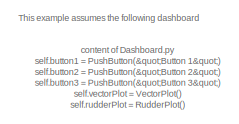
[diagram: root canvas - part 1/3, top left region]
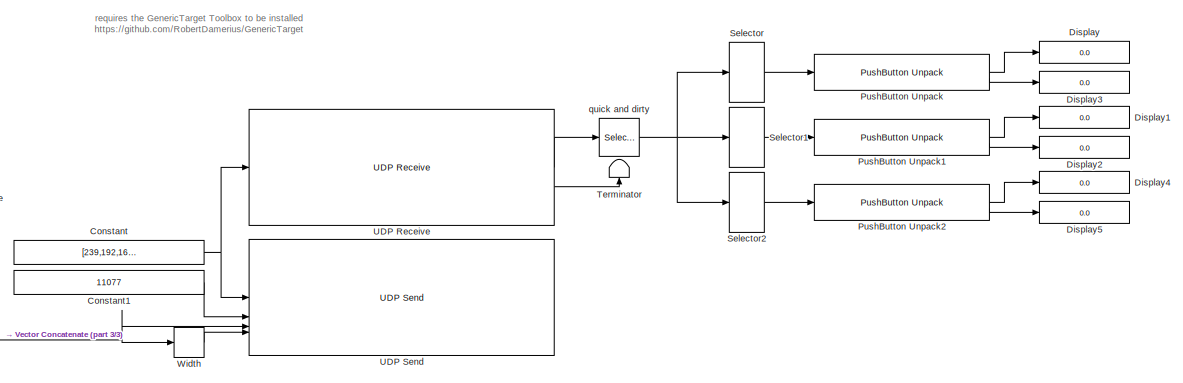
[diagram: root canvas - part 2/3, middle right region]
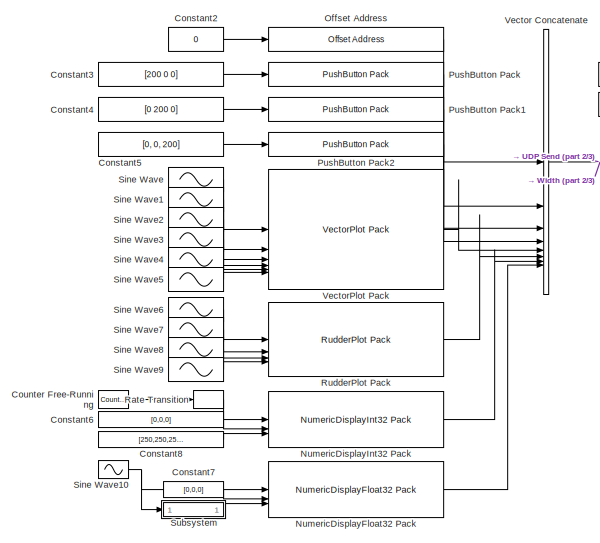
[diagram: root canvas - part 3/3, bottom left region]
MODEL slx_2256e0a58323
KIND model
CONFIG AbsTol = auto
CONFIG EnableMultiTasking = on
CONFIG FixedStep = 0.02
CONFIG MaxStep = auto
CONFIG MinStep = auto
CONFIG RelTol = 1e-3
CONFIG SampleTimeConstraint = Unconstrained
CONFIG SolverName = FixedStepAuto
CONFIG StartTime = 0.0
CONFIG StopTime = inf
BLOCK [Constant] Constant
  OutDataTypeStr = uint8
  Value = [239,192,168,11]
BLOCK [Constant] Constant1
  OutDataTypeStr = uint16
  Value = 11077
BLOCK [Constant] Constant2
  OutDataTypeStr = uint32
  Value = 0
BLOCK [Constant] Constant3
  OutDataTypeStr = uint8
  Value = [200 0 0]
BLOCK [Constant] Constant4
  OutDataTypeStr = uint8
  Value = [0 200 0]
BLOCK [Constant] Constant5
  OutDataTypeStr = uint8
  Value = [0, 0, 200]
BLOCK [Constant] Constant6
  OutDataTypeStr = uint8
  Value = [0,0,0]
BLOCK [Constant] Constant7
  OutDataTypeStr = uint8
  Value = [0,0,0]
BLOCK [Constant] Constant8
  OutDataTypeStr = uint8
  Value = [250,250,250]
BLOCK [Reference] Counter Free-Running  REF=simulink/Sources/Counter
Free-Running
  SourceBlock = simulink/Sources/Counter\nFree-Running
  SourceType = Counter Free-Running
BLOCK [Display] Display
  Decimation = 1
BLOCK [Display] Display1
  Decimation = 1
BLOCK [Display] Display2
  Decimation = 1
BLOCK [Display] Display3
  Decimation = 1
BLOCK [Display] Display4
  Decimation = 1
BLOCK [Display] Display5
  Decimation = 1
BLOCK [Reference] NumericDisplayFloat32 Pack  REF=pingui/NumericDisplayFloat32 Pack  (lib defined in slx_4c5e8eaec947)
  SourceBlock = pingui/NumericDisplayFloat32 Pack
BLOCK [Reference] NumericDisplayInt32 Pack  REF=pingui/NumericDisplayInt32 Pack  (lib defined in slx_4c5e8eaec947)
  SourceBlock = pingui/NumericDisplayInt32 Pack
BLOCK [Reference] Offset Address  REF=pingui/Offset Address  (lib defined in slx_4c5e8eaec947)
  SourceBlock = pingui/Offset Address
BLOCK [Reference] PushButton Pack  REF=pingui/PushButton Pack  (lib defined in slx_4c5e8eaec947)
  SourceBlock = pingui/PushButton Pack
BLOCK [Reference] PushButton Pack1  REF=pingui/PushButton Pack  (lib defined in slx_4c5e8eaec947)
  SourceBlock = pingui/PushButton Pack
BLOCK [Reference] PushButton Pack2  REF=pingui/PushButton Pack  (lib defined in slx_4c5e8eaec947)
  SourceBlock = pingui/PushButton Pack
BLOCK [Reference] PushButton Unpack  REF=pingui/PushButton Unpack  (lib defined in slx_4c5e8eaec947)
  SourceBlock = pingui/PushButton Unpack
BLOCK [Reference] PushButton Unpack1  REF=pingui/PushButton Unpack  (lib defined in slx_4c5e8eaec947)
  SourceBlock = pingui/PushButton Unpack
BLOCK [Reference] PushButton Unpack2  REF=pingui/PushButton Unpack  (lib defined in slx_4c5e8eaec947)
  SourceBlock = pingui/PushButton Unpack
BLOCK [RateTransition] Rate Transition
  Deterministic = off
  OutPortSampleTime = 0.02
BLOCK [Reference] RudderPlot Pack  REF=pingui/RudderPlot Pack  (lib defined in slx_4c5e8eaec947)
  SourceBlock = pingui/RudderPlot Pack
BLOCK [Selector] Selector
  IndexOptions = Index vector (dialog)
  Indices = 1:2
  InputPortWidth = 6
  OutputSizes = 1
BLOCK [Selector] Selector1
  IndexOptions = Index vector (dialog)
  Indices = 3:4
  InputPortWidth = 6
  OutputSizes = 1
BLOCK [Selector] Selector2
  IndexOptions = Index vector (dialog)
  Indices = 5:6
  InputPortWidth = 6
  OutputSizes = 1
BLOCK [Sin] Sine Wave
  SampleTime = 0
BLOCK [Sin] Sine Wave1
  Phase = 2
  SampleTime = 0
BLOCK [Sin] Sine Wave10
  Amplitude = 10
  SampleTime = 0
BLOCK [Sin] Sine Wave2
  Phase = 1
  SampleTime = 0
BLOCK [Sin] Sine Wave3
  Phase = 0.1
  SampleTime = 0
BLOCK [Sin] Sine Wave4
  Phase = 2.1
  SampleTime = 0
BLOCK [Sin] Sine Wave5
  Phase = 1.1
  SampleTime = 0
BLOCK [Sin] Sine Wave6
  Phase = 2
  SampleTime = 0
BLOCK [Sin] Sine Wave7
  SampleTime = 0
BLOCK [Sin] Sine Wave8
  Phase = 2.1
  SampleTime = 0
BLOCK [Sin] Sine Wave9
  Phase = 0.1
  SampleTime = 0
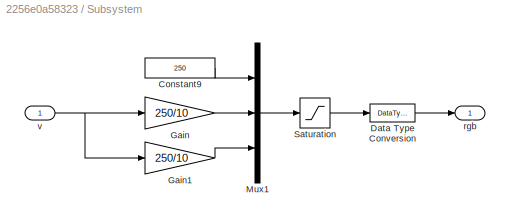
BLOCK [SubSystem] Subsystem
BLOCK [Constant] Subsystem/Constant9
  OutDataTypeStr = double
  Value = 250
BLOCK [DataTypeConversion] Subsystem/Data Type Conversion
  OutDataTypeStr = uint8
  RndMeth = Floor
  SaturateOnIntegerOverflow = off
BLOCK [Gain] Subsystem/Gain
  Gain = 250/10
BLOCK [Gain] Subsystem/Gain1
  Gain = 250/10
BLOCK [Mux] Subsystem/Mux1
  DisplayOption = bar
  Inputs = 3
BLOCK [Saturate] Subsystem/Saturation
  LowerLimit = 0
  UpperLimit = 255
BLOCK [Outport] Subsystem/rgb
BLOCK [Inport] Subsystem/v
BLOCK [Terminator] Terminator
  NameLocation = right
BLOCK [Reference] UDP Receive  REF=GenericTarget/Interface/UDP Receive
  SourceBlock = GenericTarget/Interface/UDP Receive
  SourceProductName = Generic Target
BLOCK [Reference] UDP Send  REF=GenericTarget/Interface/UDP Send
  SourceBlock = GenericTarget/Interface/UDP Send
  SourceProductName = Generic Target
BLOCK [Concatenate] Vector Concatenate
  NumInputs = 8
BLOCK [Reference] VectorPlot Pack  REF=pingui/VectorPlot Pack  (lib defined in slx_4c5e8eaec947)
  SourceBlock = pingui/VectorPlot Pack
BLOCK [Width] Width
  DataType = uint32
BLOCK [Selector] quick and dirty
  IndexOptions = Index vector (dialog)
  Indices = 1:6
  NameLocation = top
  OutputSizes = 1
ANNOTATION (root): requires the GenericTarget Toolbox to be installed https://github.com/RobertDamerius/GenericTarget
ANNOTATION (root): content of Dashboard.py self . button1 = PushButton ( "Button 1" ) self . button2 = PushButton ( "Button 2" ) self . button3 = PushButton ( "Button 3" ) self . vectorPlot = VectorPlot () self . rudderPlot = RudderPlot () self . numericDisplayInt32 = NumericDisplayInt32 () self . numericDisplayFloat32 = NumericDisplayFloat32 ( num_digits = 2 ) layout = QGridLayout () self . setLayout ( layout ) lay...<+422ch>
ANNOTATION (root): This example assumes the following dashboard
LINE Constant1:1 -> UDP Send:2
LINE Constant2:1 -> Offset Address:1
LINE Constant3:1 -> PushButton Pack:1
LINE Constant4:1 -> PushButton Pack1:1
LINE Constant5:1 -> PushButton Pack2:1
LINE Constant6:1 -> NumericDisplayInt32 Pack:2
LINE Constant7:1 -> NumericDisplayFloat32 Pack:2
LINE Constant8:1 -> NumericDisplayInt32 Pack:3
NET Constant:1 -> UDP Receive:1, UDP Send:1
LINE Counter Free-Running:1 -> Rate Transition:1
LINE NumericDisplayFloat32 Pack:1 -> Vector Concatenate:8
LINE NumericDisplayInt32 Pack:1 -> Vector Concatenate:7
LINE Offset Address:1 -> Vector Concatenate:1
LINE PushButton Pack1:1 -> Vector Concatenate:3
LINE PushButton Pack2:1 -> Vector Concatenate:4
LINE PushButton Pack:1 -> Vector Concatenate:2
LINE PushButton Unpack1:1 -> Display1:1
LINE PushButton Unpack1:2 -> Display2:1
LINE PushButton Unpack2:1 -> Display4:1
LINE PushButton Unpack2:2 -> Display5:1
LINE PushButton Unpack:1 -> Display:1
LINE PushButton Unpack:2 -> Display3:1
LINE Rate Transition:1 -> NumericDisplayInt32 Pack:1
LINE RudderPlot Pack:1 -> Vector Concatenate:6
LINE Selector1:1 -> PushButton Unpack1:1
LINE Selector2:1 -> PushButton Unpack2:1
LINE Selector:1 -> PushButton Unpack:1
NET Sine Wave10:1 -> NumericDisplayFloat32 Pack:1, Subsystem:1
LINE Sine Wave1:1 -> VectorPlot Pack:2
LINE Sine Wave2:1 -> VectorPlot Pack:3
LINE Sine Wave3:1 -> VectorPlot Pack:4
LINE Sine Wave4:1 -> VectorPlot Pack:5
LINE Sine Wave5:1 -> VectorPlot Pack:6
LINE Sine Wave6:1 -> RudderPlot Pack:1
LINE Sine Wave7:1 -> RudderPlot Pack:2
LINE Sine Wave8:1 -> RudderPlot Pack:3
LINE Sine Wave9:1 -> RudderPlot Pack:4
LINE Sine Wave:1 -> VectorPlot Pack:1
LINE Subsystem/Constant9:1 -> Subsystem/Mux1:1
LINE Subsystem/Data Type Conversion:1 -> Subsystem/rgb:1
LINE Subsystem/Gain1:1 -> Subsystem/Mux1:3
LINE Subsystem/Gain:1 -> Subsystem/Mux1:2
LINE Subsystem/Mux1:1 -> Subsystem/Saturation:1
LINE Subsystem/Saturation:1 -> Subsystem/Data Type Conversion:1
NET Subsystem/v:1 -> Subsystem/Gain1:1, Subsystem/Gain:1
LINE Subsystem:1 -> NumericDisplayFloat32 Pack:3
LINE UDP Receive:1 -> quick and dirty:1
LINE UDP Receive:2 -> Terminator:1
NET Vector Concatenate:1 -> UDP Send:3, Width:1
LINE VectorPlot Pack:1 -> Vector Concatenate:5
LINE Width:1 -> UDP Send:4
NET quick and dirty:1 -> Selector1:1, Selector2:1, Selector:1
note: NET lines group one-source signal fan-out (src -> all destinations, sorted); 1:1 wires keep LINE
